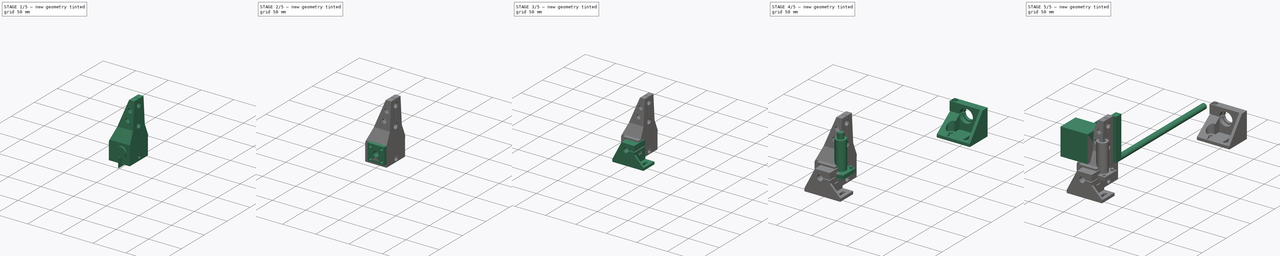
[diagram: build sequence overview — one tinted view per stage of 5, left to right]
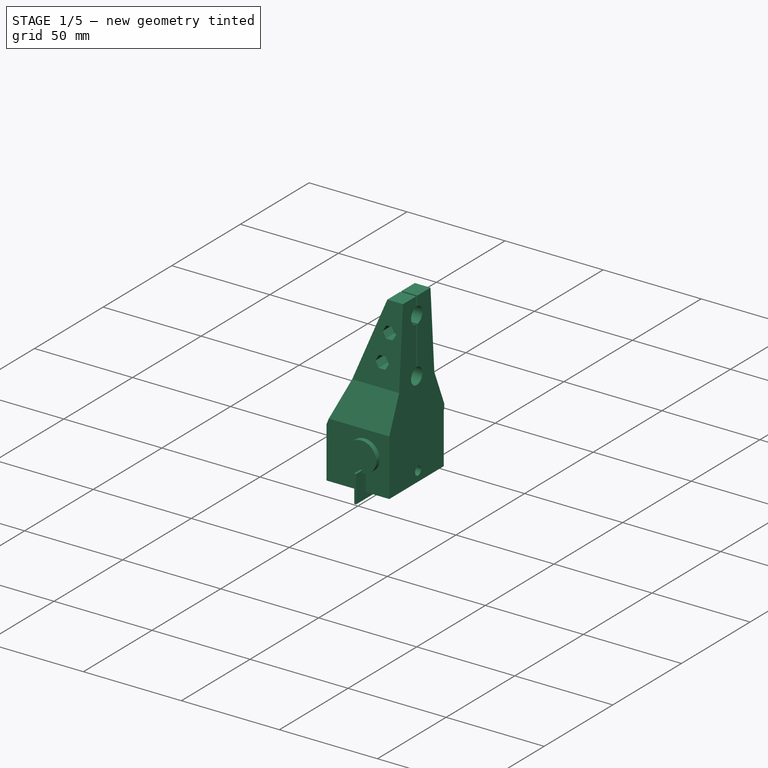
[diagram: stage 1 of 5 — iso view after this stage's code; geometry added in this stage tinted green]
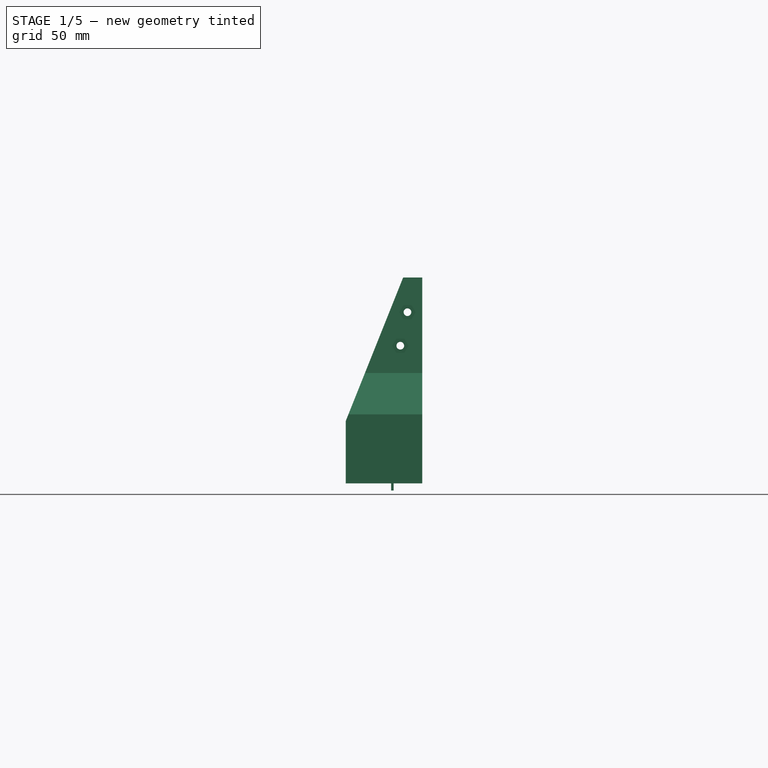
[diagram: stage 1 of 5 — front view after this stage's code; geometry added in this stage tinted green]
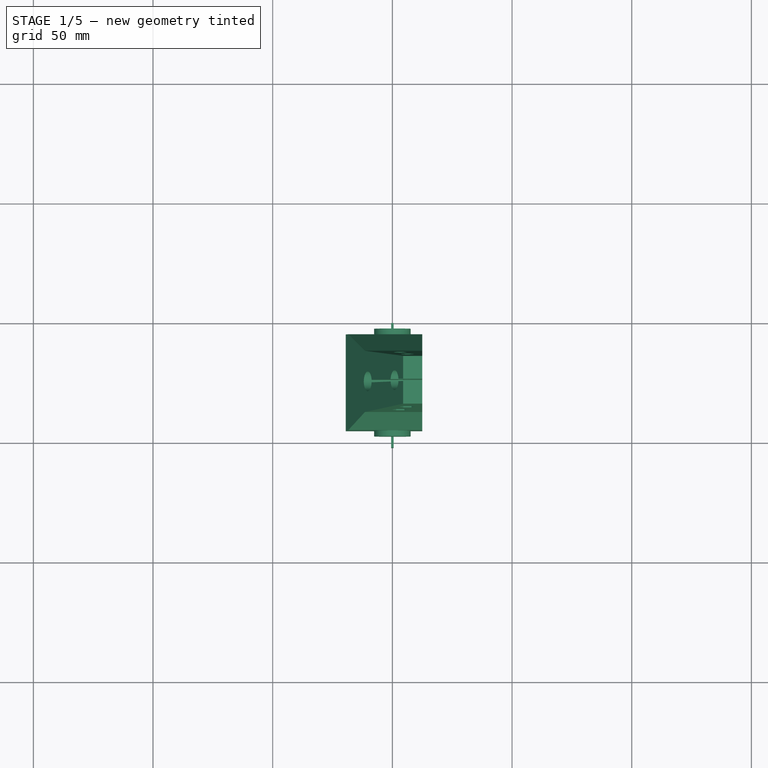
[diagram: stage 1 of 5 — top view after this stage's code; geometry added in this stage tinted green]
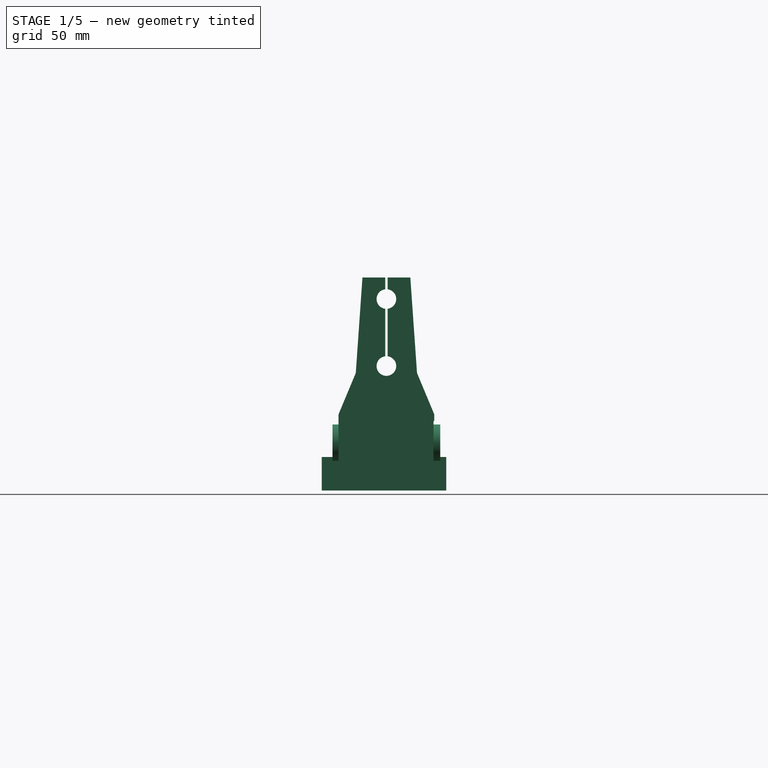
[diagram: stage 1 of 5 — right view after this stage's code; geometry added in this stage tinted green]
FCSTD DOCUMENT  (FreeCAD 0.18R4 (GitTag))
Label: Вертикальная стойка
License: All rights reserved
LicenseURL: http://en.wikipedia.org/wiki/All_rights_reserved
objects: Part::Cut×68, Part::Cylinder×63, Part::MultiFuse×24, Part::Box×21, Part::Extrusion×18, Sketcher::SketchObject×12, Part::Cone×8, Part::RegularPolygon×6, Part::FeaturePython×2
note: 222 computed .brp shape members not serialized (recipe doc carries the construction recipe); baked Part::Feature solids carry a one-line shape summary decoded from their .brp

FEATURE [Part::Box] Box001  label="Куб001"
  AttacherType = Attacher::AttachEngine3D
  Height = 26
  Length = 32
  Placement = pos=(-19.5,5,-17) rot=(0,0,1;0rad)
  Width = 39.7
FEATURE [Part::Cylinder] Cylinder076  label="Цилиндр069"
  Angle = 360
  AttacherType = Attacher::AttachEngine3D
  Height = 50
  Placement = pos=(-24,26,-8) rot=(0,1,0;1.5708rad)
  Radius = 2.2
FEATURE [Part::Cone] Cone006  label="Конус006"
  Angle = 360
  AttacherType = Attacher::AttachEngine3D
  Height = 5
  Placement = pos=(-24,26,-8) rot=(0,-1,0;1.5708rad)
  Radius1 = 2.2
  Radius2 = 4
FEATURE [Part::MultiFuse] Fusion033  label="Винт М4х50 пот"
  Placement = pos=(9,0,-4) rot=(0,0,1;0rad)
  Shapes = -> [Cone006,Cylinder076]
FEATURE [Part::Cut] Cut055
  Base = -> Box001
  Tool = -> Fusion033
FEATURE [Part::Box] Box026  label="Куб026"
  AttacherType = Attacher::AttachEngine3D
  Height = 14
  Length = 1
  Placement = pos=(-0.5,-2,-20) rot=(0,0,1;0rad)
  Width = 52
FEATURE [Part::Cylinder] Cylinder089  label="Цилиндр082"
  Angle = 360
  AttacherType = Attacher::AttachEngine3D
  Height = 45
  Placement = pos=(0,47.5,7e-15) rot=(1,0,0;1.5708rad)
  Radius = 7.6
FEATURE [Part::RegularPolygon] RegularPolygon004  label="Правильный многоугольник004"
  AttacherType = Attacher::AttachEngine3D
  Circumradius = 3.4
  Polygon = 6
FEATURE [Sketcher::SketchObject] Sketch017
  Placement = pos=(0,0,0) rot=(1,0,0;1.5708rad)
  sketch-geometry (4):
    g0: LineSegment StartX=-15 StartY=9 StartZ=0 EndX=17 EndY=9 EndZ=0
    g1: LineSegment StartX=17 StartY=9 StartZ=0 EndX=17 EndY=69 EndZ=0
    g2: LineSegment StartX=17 StartY=69 StartZ=0 EndX=9 EndY=69 EndZ=0
    g3: LineSegment StartX=9 StartY=69 StartZ=0 EndX=-15 EndY=9 EndZ=0
  constraints (12):
    c: Horizontal(g0)
    c: DistanceX(g0) = -15
    c: DistanceY(g0) = 9
    c: DistanceX(g0,g0) = 32
    c: Vertical(g1)
    c: Coincident(g1,g0)
    c: Horizontal(g2)
    c: DistanceY(g1,g1) = 60
    c: Coincident(g2,g1)
    c: DistanceX(g2,g2) = 8
    c: Coincident(g3,g2)
    c: Coincident(g3,g0)
FEATURE [Part::Box] Box029  label="Куб029"
  AttacherType = Attacher::AttachEngine3D
  Height = 26
  Length = 32
  Placement = pos=(-19.5,5,-17) rot=(0,0,1;0rad)
  Width = 39.7
FEATURE [Part::Cylinder] Cylinder090  label="Направляющая007"
  Angle = 360
  AttacherType = Attacher::AttachEngine3D
  Height = 240
  Placement = pos=(-33,25,32) rot=(0.57735,-0.57735,0.57735;4.18879rad)
  Radius = 4.1
FEATURE [Part::Extrusion] Extrude020
  Base = -> Sketch017
  Dir = (0,1,0)
  DirMode = 0
  FaceMakerClass = Part::FaceMakerBullseye
  LengthFwd = 40
  LengthRev = 0
  Placement = pos=(0,5,0) rot=(0,0,1;0rad)
  Solid = true
  Symmetric = false
FEATURE [Part::Cylinder] Cylinder091  label="Направляющая008"
  Angle = 360
  AttacherType = Attacher::AttachEngine3D
  Height = 240
  Placement = pos=(-7.9,25,60) rot=(0.57735,-0.57735,0.57735;4.18879rad)
  Radius = 4.1
FEATURE [Part::Box] Box030  label="Куб030"
  AttacherType = Attacher::AttachEngine3D
  Height = 48
  Length = 36
  Placement = pos=(-12,24.5,31) rot=(0,0,1;0rad)
  Width = 1
FEATURE [Sketcher::SketchObject] Sketch018
  Placement = pos=(0,0,0) rot=(0.57735,0.57735,0.57735;2.0944rad)
  sketch-geometry (4):
    g0: LineSegment StartX=15 StartY=69 StartZ=0 EndX=12.2079 EndY=29.0976 EndZ=0
    g1: LineSegment StartX=12.2079 StartY=29.0976 StartZ=0 EndX=4.204 EndY=9.91667 EndZ=0
    g2: LineSegment StartX=4.204 StartY=9.91667 StartZ=0 EndX=4.204 EndY=69 EndZ=0
    g3: LineSegment StartX=15 StartY=69 StartZ=0 EndX=4.204 EndY=69 EndZ=0
  constraints (12):
    c: DistanceX(g0) = 15
    c: DistanceY(g0) = 69
    c: Distance(g0) = 40
    c: Coincident(g1,g0)
    c: Vertical(g2)
    c: Coincident(g2,g1)
    c: Horizontal(g3)
    c: Coincident(g3,g0)
    c: Coincident(g2,g3)
    c: DistanceX(g1) = 4.204
    c: DistanceY(g1) = 9.91667
    c: Angle(g1,g2) = 0.395317
FEATURE [Part::Extrusion] Extrude022
  Base = -> Sketch018
  Dir = (1,0,0)
  DirMode = 0
  FaceMakerClass = Part::FaceMakerBullseye
  LengthFwd = 50
  LengthRev = 0
  Placement = pos=(28,50,0) rot=(0,0,1;3.14159rad)
  Solid = true
  Symmetric = false
FEATURE [Sketcher::SketchObject] Sketch019
  Placement = pos=(0,0,0) rot=(0.57735,0.57735,0.57735;2.0944rad)
  sketch-geometry (4):
    g0: LineSegment StartX=15 StartY=69 StartZ=0 EndX=12.2079 EndY=29.0976 EndZ=0
    g1: LineSegment StartX=12.2079 StartY=29.0976 StartZ=0 EndX=4.204 EndY=9.91667 EndZ=0
    g2: LineSegment StartX=4.204 StartY=9.91667 StartZ=0 EndX=4.204 EndY=69 EndZ=0
    g3: LineSegment StartX=15 StartY=69 StartZ=0 EndX=4.204 EndY=69 EndZ=0
  constraints (12):
    c: DistanceX(g0) = 15
    c: DistanceY(g0) = 69
    c: Distance(g0) = 40
    c: Coincident(g1,g0)
    c: Vertical(g2)
    c: Coincident(g2,g1)
    c: Horizontal(g3)
    c: Coincident(g3,g0)
    c: Coincident(g2,g3)
    c: DistanceX(g1) = 4.204
    c: DistanceY(g1) = 9.91667
    c: Angle(g1,g2) = 0.395317
FEATURE [Part::Extrusion] Extrude021
  Base = -> Sketch019
  Dir = (1,0,0)
  DirMode = 0
  FaceMakerClass = Part::FaceMakerBullseye
  LengthFwd = 50
  LengthRev = 0
  Placement = pos=(-19,0,0) rot=(0,0,1;0rad)
  Solid = true
  Symmetric = false
FEATURE [Part::RegularPolygon] RegularPolygon005  label="Правильный многоугольник005"
  AttacherType = Attacher::AttachEngine3D
  Circumradius = 3.4
  Polygon = 6
FEATURE [Part::Cut] Cut076
  Base = -> Extrude020
  Tool = -> Extrude021
FEATURE [Part::Cut] Cut070
  Base = -> Cut076
  Tool = -> Extrude022
FEATURE [Part::Cut] Cut077
  Base = -> Cut070
  Tool = -> Cylinder090
FEATURE [Part::Cut] Cut069
  Base = -> Cut077
  Tool = -> Cylinder091
FEATURE [Part::Cut] Cut075
  Base = -> Cut069
  Tool = -> Box030
FEATURE [Part::Cylinder] Cylinder092  label="Цилиндр083"
  Angle = 360
  AttacherType = Attacher::AttachEngine3D
  Height = 15
  Radius = 1.6
FEATURE [Part::Cylinder] Cylinder093  label="Цилиндр084"
  Angle = 360
  AttacherType = Attacher::AttachEngine3D
  Height = 15
  Radius = 1.6
FEATURE [Part::Extrusion] Extrude023
  Base = -> RegularPolygon005
  Dir = (0,0,1)
  DirMode = 0
  FaceMakerClass = Part::FaceMakerBullseye
  LengthFwd = 15
  LengthRev = 0
  Placement = pos=(7.8,6.8,40.5) rot=(-1,0,0;1.5708rad)
  Solid = true
  Symmetric = false
FEATURE [Part::Extrusion] Extrude024
  Base = -> RegularPolygon004
  Dir = (0,0,1)
  DirMode = 0
  FaceMakerClass = Part::FaceMakerBullseye
  LengthFwd = 15
  LengthRev = 0
  Placement = pos=(10.8,5.2,54.5) rot=(-1,0,0;1.5708rad)
  Solid = true
  Symmetric = false
FEATURE [Part::Cut] Cut071
  Base = -> Cut075
  Tool = -> Extrude024
FEATURE [Part::Cut] Cut072
  Base = -> Cut071
  Tool = -> Extrude023
FEATURE [Part::Cylinder] Cylinder094  label="Цилиндр085"
  Angle = 360
  AttacherType = Attacher::AttachEngine3D
  Height = 50
  Placement = pos=(-24,26,-8) rot=(0,1,0;1.5708rad)
  Radius = 2.2
FEATURE [Part::Box] Box031  label="Куб031"
  AttacherType = Attacher::AttachEngine3D
  Height = 14
  Length = 1
  Placement = pos=(-0.5,-2,-20) rot=(0,0,1;0rad)
  Width = 52
FEATURE [Part::RegularPolygon] RegularPolygon006  label="Правильный многоугольник006"
  AttacherType = Attacher::AttachEngine3D
  Circumradius = 4.3
  Polygon = 6
FEATURE [Part::Extrusion] Extrude025  label="Гайка М005"
  Base = -> RegularPolygon006
  Dir = (0,0,1)
  DirMode = 0
  FaceMakerClass = Part::FaceMakerBullseye
  LengthFwd = 8
  LengthRev = 0
  Placement = pos=(5,26,-12) rot=(0,1,0;1.5708rad)
  Solid = true
  Symmetric = false
FEATURE [Part::Cylinder] Cylinder095  label="Цилиндр086"
  Angle = 360
  AttacherType = Attacher::AttachEngine3D
  Height = 45
  Placement = pos=(0,47.5,7e-15) rot=(1,0,0;1.5708rad)
  Radius = 7.6
FEATURE [Part::Cone] Cone007  label="Конус007"
  Angle = 360
  AttacherType = Attacher::AttachEngine3D
  Height = 3.5
  Placement = pos=(0,0,15) rot=(0,0,1;0rad)
  Radius1 = 1.6
  Radius2 = 3
FEATURE [Part::MultiFuse] Fusion037  label="Винт М3 потай006"
  Placement = pos=(7.8,19,40.5) rot=(-1,0,0;1.5708rad)
  Shapes = -> [Cone007,Cylinder093]
FEATURE [Part::Cut] Cut073
  Base = -> Cut072
  Tool = -> Fusion037
FEATURE [Part::Cone] Cone008  label="Конус008"
  Angle = 360
  AttacherType = Attacher::AttachEngine3D
  Height = 3.5
  Placement = pos=(0,0,15) rot=(0,0,1;0rad)
  Radius1 = 1.6
  Radius2 = 3
FEATURE [Part::MultiFuse] Fusion038  label="Винт М3 потай007"
  Placement = pos=(10.8,18,54.5) rot=(-1,0,0;1.5708rad)
  Shapes = -> [Cone008,Cylinder092]
FEATURE [Part::Cut] Cut074
  Base = -> Cut073
  Placement = pos=(-4.5,0,0) rot=(0,0,1;0rad)
  Tool = -> Fusion038
FEATURE [Part::Cone] Cone009  label="Конус009"
  Angle = 360
  AttacherType = Attacher::AttachEngine3D
  Height = 5
  Placement = pos=(-24,26,-8) rot=(0,-1,0;1.5708rad)
  Radius1 = 2.2
  Radius2 = 4
FEATURE [Part::MultiFuse] Fusion039  label="Винт М4х50 пот001"
  Placement = pos=(9,0,-4) rot=(0,0,1;0rad)
  Shapes = -> [Cone009,Cylinder094]
FEATURE [Part::Cut] Cut079
  Base = -> Box029
  Tool = -> Fusion039
FEATURE [Part::Cut] Cut078
  Base = -> Cut079
  Tool = -> Extrude025
FEATURE [Part::Cut] Cut080
  Base = -> Cut078
  Tool = -> Box031
FEATURE [Part::Cut] Cut081
  Base = -> Cut080
  Tool = -> Cylinder095
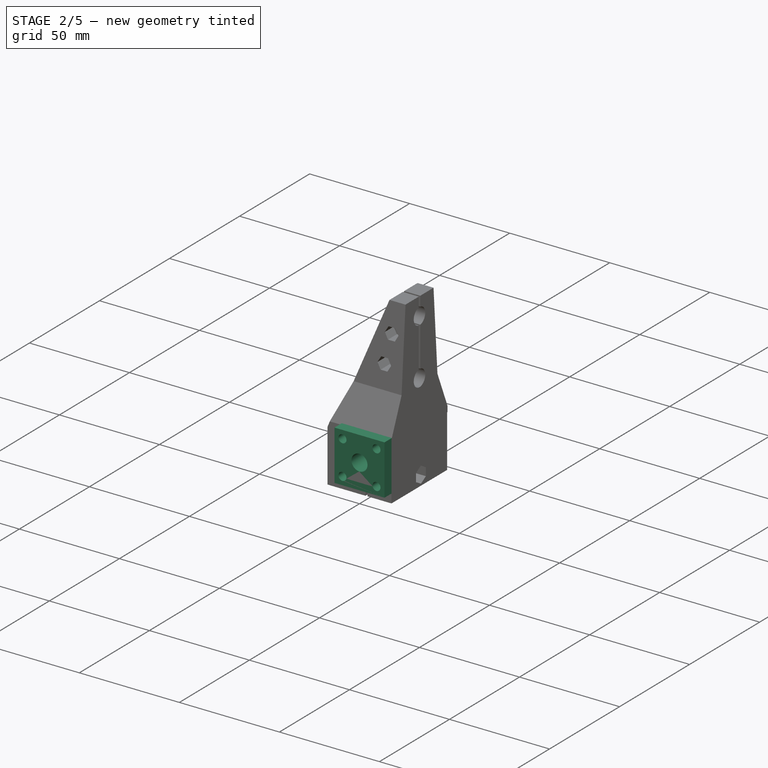
[diagram: stage 2 of 5 — iso view after this stage's code; geometry added in this stage tinted green]
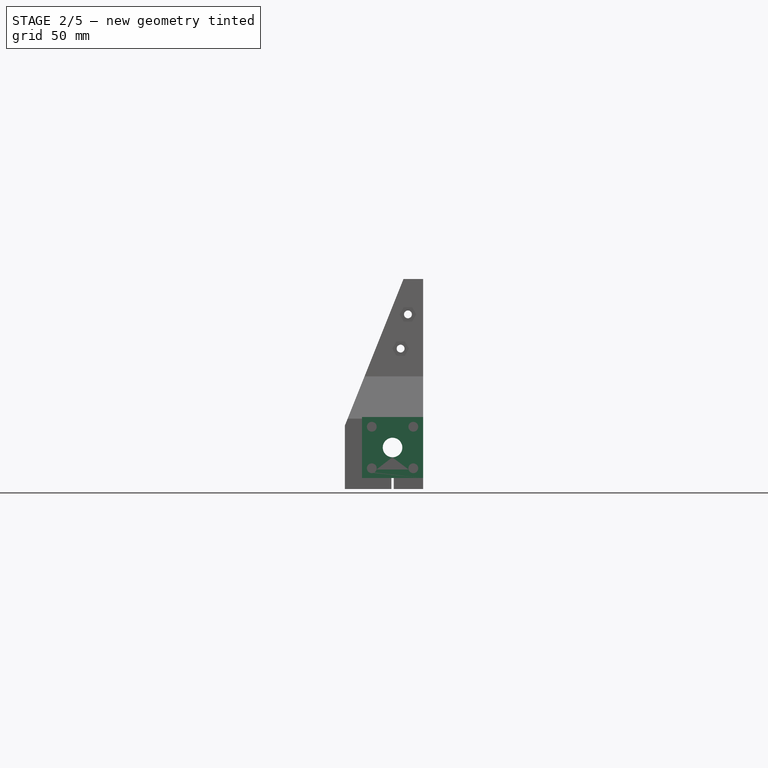
[diagram: stage 2 of 5 — front view after this stage's code; geometry added in this stage tinted green]
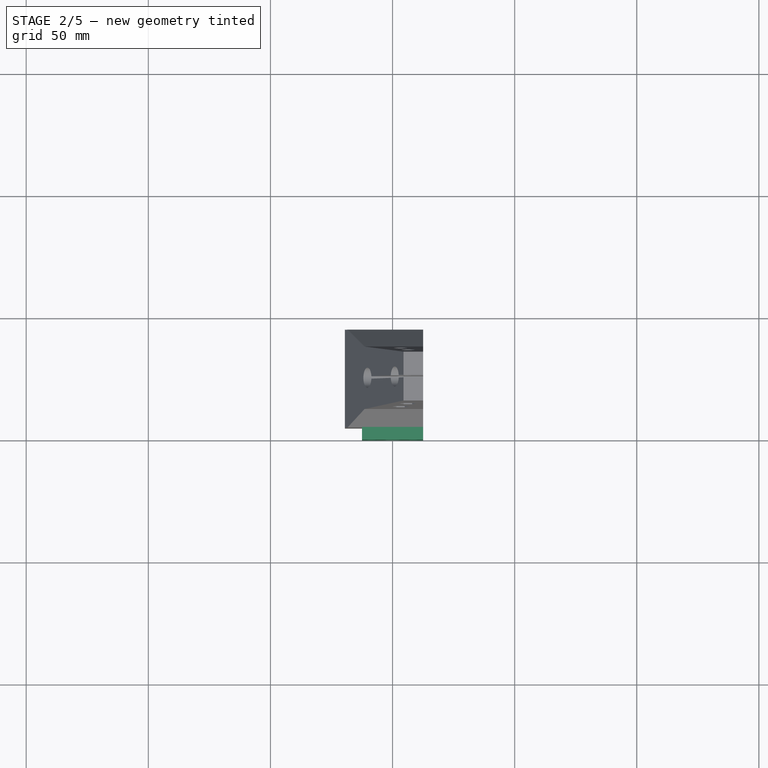
[diagram: stage 2 of 5 — top view after this stage's code; geometry added in this stage tinted green]
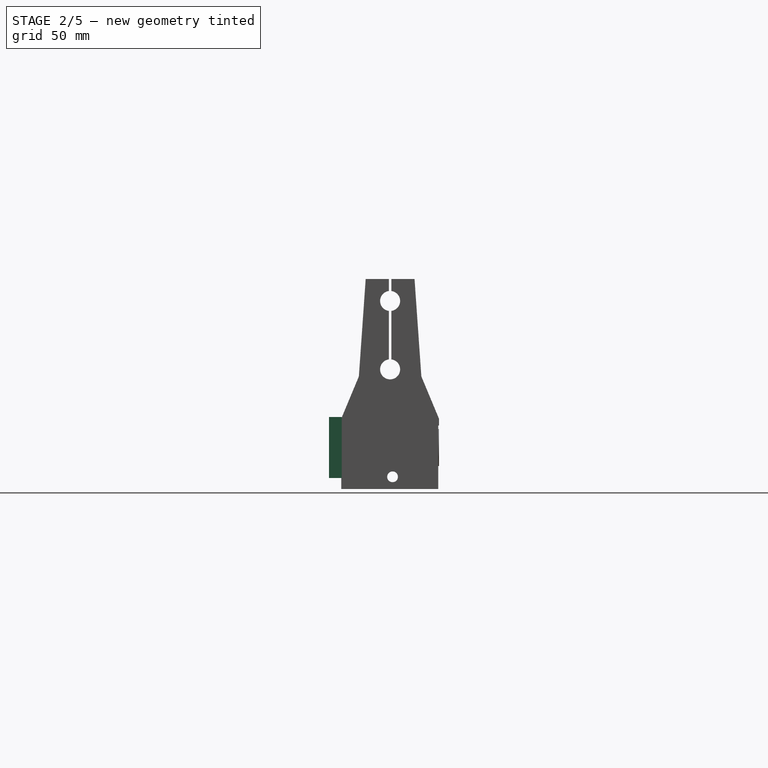
[diagram: stage 2 of 5 — right view after this stage's code; geometry added in this stage tinted green]
FEATURE [Part::Cylinder] Cylinder009  label="Направляющая002"
  Angle = 360
  AttacherType = Attacher::AttachEngine3D
  Height = 240
  Placement = pos=(-33,25,32) rot=(0.57735,-0.57735,0.57735;4.18879rad)
  Radius = 4.1
FEATURE [Part::Cylinder] Cylinder010  label="Направляющая003"
  Angle = 360
  AttacherType = Attacher::AttachEngine3D
  Height = 240
  Placement = pos=(-7.9,25,60) rot=(0.57735,-0.57735,0.57735;4.18879rad)
  Radius = 4.1
FEATURE [Sketcher::SketchObject] Sketch
  Placement = pos=(0,0,0) rot=(1,0,0;1.5708rad)
  sketch-geometry (4):
    g0: LineSegment StartX=-15 StartY=9 StartZ=0 EndX=17 EndY=9 EndZ=0
    g1: LineSegment StartX=17 StartY=9 StartZ=0 EndX=17 EndY=69 EndZ=0
    g2: LineSegment StartX=17 StartY=69 StartZ=0 EndX=9 EndY=69 EndZ=0
    g3: LineSegment StartX=9 StartY=69 StartZ=0 EndX=-15 EndY=9 EndZ=0
  constraints (12):
    c: Horizontal(g0)
    c: DistanceX(g0) = -15
    c: DistanceY(g0) = 9
    c: DistanceX(g0,g0) = 32
    c: Vertical(g1)
    c: Coincident(g1,g0)
    c: Horizontal(g2)
    c: DistanceY(g1,g1) = 60
    c: Coincident(g2,g1)
    c: DistanceX(g2,g2) = 8
    c: Coincident(g3,g2)
    c: Coincident(g3,g0)
FEATURE [Part::Extrusion] Extrude
  Base = -> Sketch
  Dir = (0,1,0)
  DirMode = 0
  FaceMakerClass = Part::FaceMakerBullseye
  LengthFwd = 40
  LengthRev = 0
  Placement = pos=(0,5,0) rot=(0,0,1;0rad)
  Solid = true
  Symmetric = false
FEATURE [Sketcher::SketchObject] Sketch001
  Placement = pos=(0,0,0) rot=(0.57735,0.57735,0.57735;2.0944rad)
  sketch-geometry (4):
    g0: LineSegment StartX=15 StartY=69 StartZ=0 EndX=12.2079 EndY=29.0976 EndZ=0
    g1: LineSegment StartX=12.2079 StartY=29.0976 StartZ=0 EndX=4.204 EndY=9.91667 EndZ=0
    g2: LineSegment StartX=4.204 StartY=9.91667 StartZ=0 EndX=4.204 EndY=69 EndZ=0
    g3: LineSegment StartX=15 StartY=69 StartZ=0 EndX=4.204 EndY=69 EndZ=0
  constraints (12):
    c: DistanceX(g0) = 15
    c: DistanceY(g0) = 69
    c: Distance(g0) = 40
    c: Coincident(g1,g0)
    c: Vertical(g2)
    c: Coincident(g2,g1)
    c: Horizontal(g3)
    c: Coincident(g3,g0)
    c: Coincident(g2,g3)
    c: DistanceX(g1) = 4.204
    c: DistanceY(g1) = 9.91667
    c: Angle(g1,g2) = 0.395317
FEATURE [Part::Extrusion] Extrude001
  Base = -> Sketch001
  Dir = (1,0,0)
  DirMode = 0
  FaceMakerClass = Part::FaceMakerBullseye
  LengthFwd = 50
  LengthRev = 0
  Placement = pos=(-19,0,0) rot=(0,0,1;0rad)
  Solid = true
  Symmetric = false
FEATURE [Sketcher::SketchObject] Sketch002
  Placement = pos=(0,0,0) rot=(0.57735,0.57735,0.57735;2.0944rad)
  sketch-geometry (4):
    g0: LineSegment StartX=15 StartY=69 StartZ=0 EndX=12.2079 EndY=29.0976 EndZ=0
    g1: LineSegment StartX=12.2079 StartY=29.0976 StartZ=0 EndX=4.204 EndY=9.91667 EndZ=0
    g2: LineSegment StartX=4.204 StartY=9.91667 StartZ=0 EndX=4.204 EndY=69 EndZ=0
    g3: LineSegment StartX=15 StartY=69 StartZ=0 EndX=4.204 EndY=69 EndZ=0
  constraints (12):
    c: DistanceX(g0) = 15
    c: DistanceY(g0) = 69
    c: Distance(g0) = 40
    c: Coincident(g1,g0)
    c: Vertical(g2)
    c: Coincident(g2,g1)
    c: Horizontal(g3)
    c: Coincident(g3,g0)
    c: Coincident(g2,g3)
    c: DistanceX(g1) = 4.204
    c: DistanceY(g1) = 9.91667
    c: Angle(g1,g2) = 0.395317
FEATURE [Part::Extrusion] Extrude002
  Base = -> Sketch002
  Dir = (1,0,0)
  DirMode = 0
  FaceMakerClass = Part::FaceMakerBullseye
  LengthFwd = 50
  LengthRev = 0
  Placement = pos=(28,50,0) rot=(0,0,1;3.14159rad)
  Solid = true
  Symmetric = false
FEATURE [Part::Cut] Cut035
  Base = -> Extrude
  Tool = -> Extrude001
FEATURE [Part::Cut] Cut036
  Base = -> Cut035
  Tool = -> Extrude002
FEATURE [Part::Box] Box007  label="Куб007"
  AttacherType = Attacher::AttachEngine3D
  Height = 48
  Length = 36
  Placement = pos=(-12,24.5,31) rot=(0,0,1;0rad)
  Width = 1
FEATURE [Part::Cut] Cut037
  Base = -> Cut036
  Tool = -> Cylinder009
FEATURE [Part::Cut] Cut038
  Base = -> Cut037
  Tool = -> Cylinder010
FEATURE [Part::Cut] Cut039
  Base = -> Cut038
  Tool = -> Box007
FEATURE [Part::Cone] Cone004  label="Конус004"
  Angle = 360
  AttacherType = Attacher::AttachEngine3D
  Height = 3.5
  Placement = pos=(0,0,15) rot=(0,0,1;0rad)
  Radius1 = 1.6
  Radius2 = 3
FEATURE [Part::Cylinder] Cylinder068  label="Цилиндр062"
  Angle = 360
  AttacherType = Attacher::AttachEngine3D
  Height = 15
  Radius = 1.6
FEATURE [Part::MultiFuse] Fusion029  label="Винт М3 потай004"
  Placement = pos=(7.8,19,40.5) rot=(-1,0,0;1.5708rad)
  Shapes = -> [Cone004,Cylinder068]
FEATURE [Part::Cylinder] Cylinder069  label="Цилиндр063"
  Angle = 360
  AttacherType = Attacher::AttachEngine3D
  Height = 15
  Radius = 1.6
FEATURE [Part::Cone] Cone005  label="Конус005"
  Angle = 360
  AttacherType = Attacher::AttachEngine3D
  Height = 3.5
  Placement = pos=(0,0,15) rot=(0,0,1;0rad)
  Radius1 = 1.6
  Radius2 = 3
FEATURE [Part::MultiFuse] Fusion030  label="Винт М3 потай005"
  Placement = pos=(10.8,18,54.5) rot=(-1,0,0;1.5708rad)
  Shapes = -> [Cone005,Cylinder069]
FEATURE [Part::RegularPolygon] RegularPolygon  label="Правильный многоугольник"
  AttacherType = Attacher::AttachEngine3D
  Circumradius = 3.4
  Polygon = 6
FEATURE [Part::Extrusion] Extrude003
  Base = -> RegularPolygon
  Dir = (0,0,1)
  DirMode = 0
  FaceMakerClass = Part::FaceMakerBullseye
  LengthFwd = 15
  LengthRev = 0
  Placement = pos=(7.8,6.8,40.5) rot=(-1,0,0;1.5708rad)
  Solid = true
  Symmetric = false
FEATURE [Part::RegularPolygon] RegularPolygon001  label="Правильный многоугольник001"
  AttacherType = Attacher::AttachEngine3D
  Circumradius = 3.4
  Polygon = 6
FEATURE [Part::Extrusion] Extrude004
  Base = -> RegularPolygon001
  Dir = (0,0,1)
  DirMode = 0
  FaceMakerClass = Part::FaceMakerBullseye
  LengthFwd = 15
  LengthRev = 0
  Placement = pos=(10.8,5.2,54.5) rot=(-1,0,0;1.5708rad)
  Solid = true
  Symmetric = false
FEATURE [Part::Cut] Cut040
  Base = -> Cut039
  Tool = -> Extrude004
FEATURE [Part::Cut] Cut041
  Base = -> Cut040
  Tool = -> Extrude003
FEATURE [Part::Cut] Cut042
  Base = -> Cut041
  Tool = -> Fusion029
FEATURE [Part::Cut] Cut043
  Base = -> Cut042
  Placement = pos=(-4.5,0,0) rot=(0,0,1;0rad)
  Tool = -> Fusion030
FEATURE [Part::RegularPolygon] RegularPolygon003  label="Правильный многоугольник003"
  AttacherType = Attacher::AttachEngine3D
  Circumradius = 4.1
  Polygon = 6
FEATURE [Part::Extrusion] Extrude019  label="Гайка М4"
  Base = -> RegularPolygon003
  Dir = (0,0,1)
  DirMode = 0
  FaceMakerClass = Part::FaceMakerBullseye
  LengthFwd = 8
  LengthRev = 0
  Placement = pos=(5,26,-12) rot=(0,1,0;1.5708rad)
  Solid = true
  Symmetric = false
FEATURE [Part::Cut] Cut056
  Base = -> Cut055
  Tool = -> Extrude019
FEATURE [Part::Cut] Cut057
  Base = -> Cut056
  Tool = -> Box026
FEATURE [Part::Box] Box028  label="Куб028"
  AttacherType = Attacher::AttachEngine3D
  Height = 5.2
  Length = 25
  Width = 25
FEATURE [Part::Cylinder] Cylinder083  label="Цилиндр076"
  Angle = 360
  AttacherType = Attacher::AttachEngine3D
  Height = 60
  Placement = pos=(12.5,12.5,-7) rot=(0,0,1;0rad)
  Radius = 4
FEATURE [Part::Cylinder] Cylinder084  label="Цилиндр077"
  Angle = 360
  AttacherType = Attacher::AttachEngine3D
  Height = 10
  Placement = pos=(4,4,-2) rot=(0,0,1;0rad)
  Radius = 2
FEATURE [Part::Cylinder] Cylinder085  label="Цилиндр078"
  Angle = 360
  AttacherType = Attacher::AttachEngine3D
  Height = 10
  Placement = pos=(4,21,-2) rot=(0,0,1;0rad)
  Radius = 2
FEATURE [Part::Cylinder] Cylinder086  label="Цилиндр079"
  Angle = 360
  AttacherType = Attacher::AttachEngine3D
  Height = 10
  Placement = pos=(21,21,-2) rot=(0,0,1;0rad)
  Radius = 2
FEATURE [Part::Cylinder] Cylinder087  label="Цилиндр080"
  Angle = 360
  AttacherType = Attacher::AttachEngine3D
  Height = 10
  Placement = pos=(21,4,-2) rot=(0,0,1;0rad)
  Radius = 2
FEATURE [Part::Cylinder] Cylinder088  label="Цилиндр081"
  Angle = 360
  AttacherType = Attacher::AttachEngine3D
  Height = 40
  Placement = pos=(12.5,12.5,5) rot=(0,0,1;0rad)
  Radius = 7.6
FEATURE [Part::MultiFuse] Fusion035
  Shapes = -> [Box028,Cylinder088]
FEATURE [Part::Cut] Cut065
  Base = -> Fusion035
  Tool = -> Cylinder083
FEATURE [Part::Cut] Cut066
  Base = -> Cut065
  Tool = -> Cylinder084
FEATURE [Part::Cut] Cut063
  Base = -> Cut066
  Tool = -> Cylinder085
FEATURE [Part::Cut] Cut064
  Base = -> Cut063
  Tool = -> Cylinder087
FEATURE [Part::Cut] Cut067  label="Линейный подшипник004"
  Base = -> Cut064
  Placement = pos=(-12.5,3e-15,12.5) rot=(-1,0,0;1.5708rad)
  Tool = -> Cylinder086
FEATURE [Part::Cut] Cut068
  Base = -> Cut057
  Tool = -> Cylinder089
FEATURE [Part::MultiFuse] Fusion036
  Shapes = -> [Cut068,Cut043]
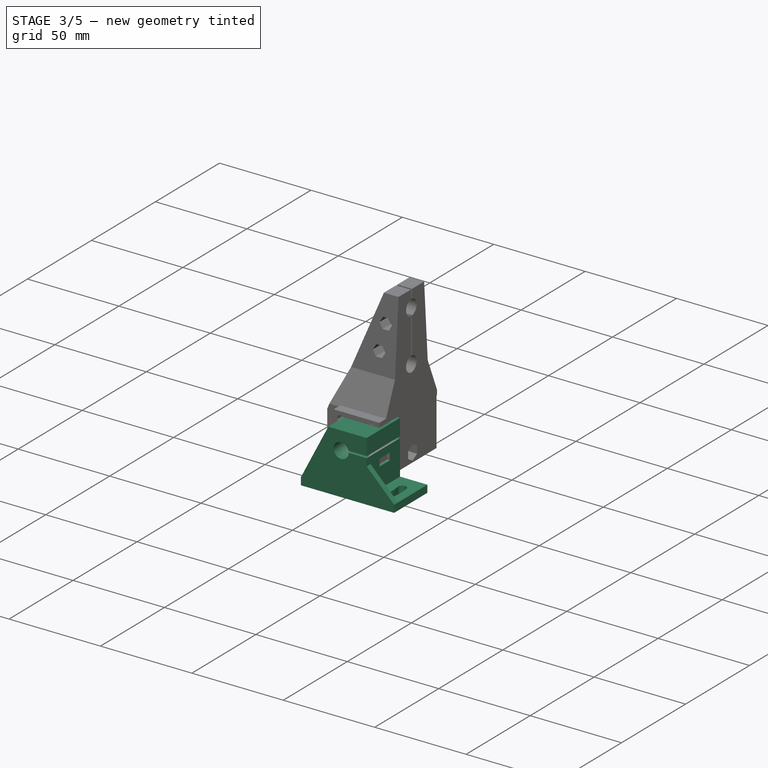
[diagram: stage 3 of 5 — iso view after this stage's code; geometry added in this stage tinted green]
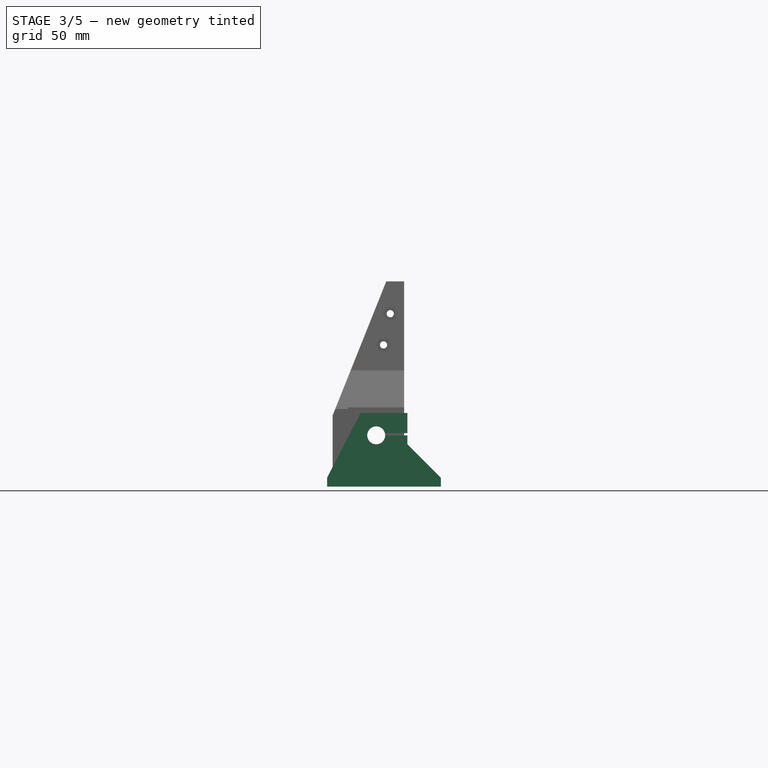
[diagram: stage 3 of 5 — front view after this stage's code; geometry added in this stage tinted green]
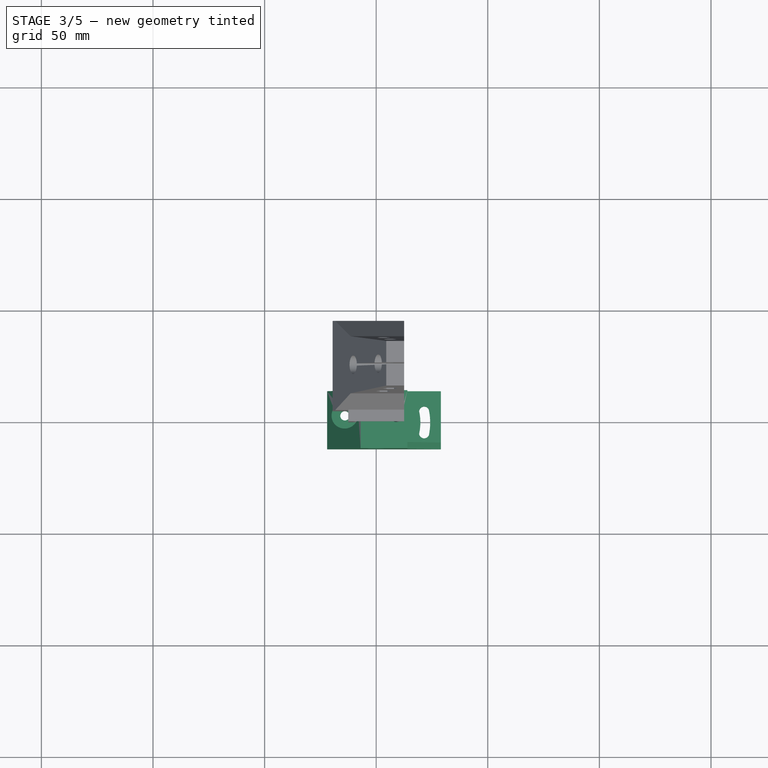
[diagram: stage 3 of 5 — top view after this stage's code; geometry added in this stage tinted green]
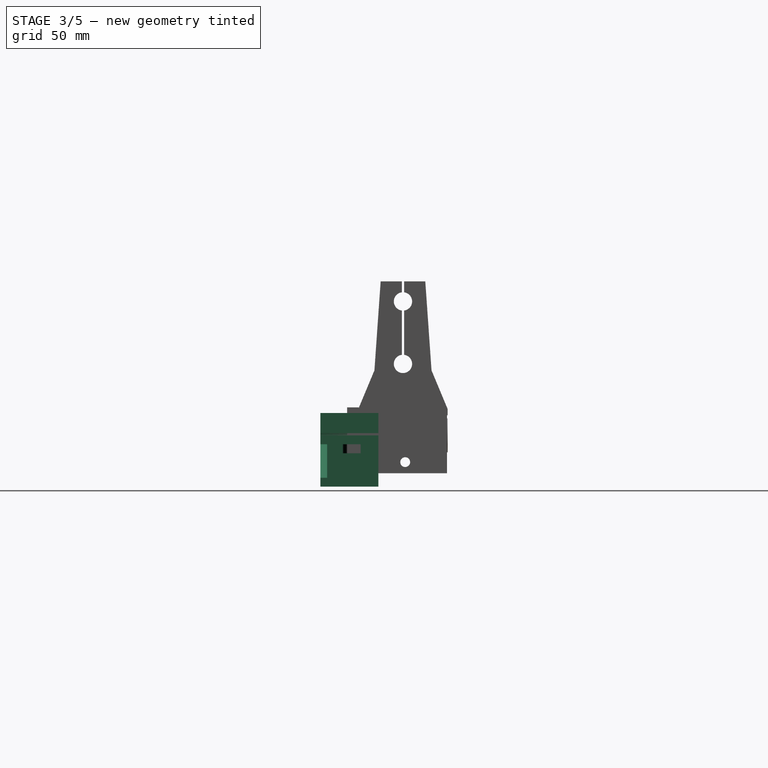
[diagram: stage 3 of 5 — right view after this stage's code; geometry added in this stage tinted green]
FEATURE [Part::Cylinder] Cylinder044  label="Цилиндр041"
  Angle = 360
  AttacherType = Attacher::AttachEngine3D
  Height = 4
  Placement = pos=(9,11,-8) rot=(0,0,1;0rad)
  Radius = 4
FEATURE [Part::Box] Box014  label="Куб014"
  AttacherType = Attacher::AttachEngine3D
  Height = 4
  Length = 13
  Placement = pos=(9,7,-8) rot=(0,0,1;0rad)
  Width = 8
FEATURE [Part::MultiFuse] Fusion015
  Placement = pos=(13,42,21) rot=(0,0,1;3.14159rad)
  Shapes = -> [Box014,Cylinder044]
FEATURE [Part::Box] Box022  label="Куб022"
  AttacherType = Attacher::AttachEngine3D
  Height = 33
  Length = 21
  Placement = pos=(-7,-3,-23) rot=(0,0,1;0rad)
  Width = 26
FEATURE [Part::Box] Box023  label="Куб023"
  AttacherType = Attacher::AttachEngine3D
  Height = 4
  Length = 51
  Placement = pos=(-22,0,-23) rot=(0,0,1;0rad)
  Width = 26
FEATURE [Part::Cylinder] Cylinder071  label="Цилиндр065"
  Angle = 360
  AttacherType = Attacher::AttachEngine3D
  Height = 10
  Radius = 2.1
FEATURE [Part::Cylinder] Cylinder072  label="Цилиндр066"
  Angle = 360
  AttacherType = Attacher::AttachEngine3D
  Height = 30
  Placement = pos=(0,0,10) rot=(0,0,1;0rad)
  Radius = 6
FEATURE [Part::Box] Box024  label="Куб024"
  AttacherType = Attacher::AttachEngine3D
  Height = 1
  Length = 12
  Placement = pos=(3,-6,0) rot=(0,0,1;0rad)
  Width = 35
FEATURE [Part::Cylinder] Cylinder073  label="Направляющая006"
  Angle = 360
  AttacherType = Attacher::AttachEngine3D
  Height = 240
  Placement = pos=(0,-7,-2e-15) rot=(-1,0,0;1.5708rad)
  Radius = 4.1
FEATURE [Part::Cylinder] Cylinder074  label="Цилиндр067"
  Angle = 360
  AttacherType = Attacher::AttachEngine3D
  Height = 15
  Radius = 1.6
FEATURE [Part::Cylinder] Cylinder075  label="Цилиндр068"
  Angle = 360
  AttacherType = Attacher::AttachEngine3D
  Height = 4
  Placement = pos=(9,11,-8) rot=(0,0,1;0rad)
  Radius = 4
FEATURE [Part::Box] Box025  label="Куб025"
  AttacherType = Attacher::AttachEngine3D
  Height = 4
  Length = 13
  Placement = pos=(9,7,-8) rot=(0,0,1;0rad)
  Width = 8
FEATURE [Part::Cone] Cone  label="Конус"
  Angle = 360
  AttacherType = Attacher::AttachEngine3D
  Height = 2.5
  Placement = pos=(0,0,15) rot=(0,0,1;0rad)
  Radius1 = 1.6
  Radius2 = 2.5
FEATURE [Sketcher::SketchObject] Sketch016
  Placement = pos=(0,0,0) rot=(1,0,0;1.5708rad)
  sketch-geometry (3):
    g0: LineSegment StartX=-22 StartY=-19 StartZ=0 EndX=-7 EndY=-19 EndZ=0
    g1: LineSegment StartX=-7 StartY=-19 StartZ=0 EndX=-7 EndY=10 EndZ=0
    g2: LineSegment StartX=-7 StartY=10 StartZ=0 EndX=-22 EndY=-19 EndZ=0
  constraints (9):
    c: Horizontal(g0)
    c: Vertical(g1)
    c: DistanceX(g0) = -7
    c: DistanceY(g0) = -19
    c: Coincident(g0,g1)
    c: Coincident(g2,g0)
    c: DistanceY(g1,g1) = 29
    c: Coincident(g2,g1)
    c: DistanceX(g0,g0) = 15
FEATURE [Part::Extrusion] Extrude017
  Base = -> Sketch016
  Dir = (0,1,0)
  DirMode = 0
  FaceMakerClass = Part::FaceMakerBullseye
  LengthFwd = 26
  LengthRev = 0
  Placement = pos=(0,-3,0) rot=(0,0,1;0rad)
  Solid = true
  Symmetric = false
FEATURE [Sketcher::SketchObject] Sketch003
  sketch-geometry (4):
    g0: ArcOfCircle CenterX=9 CenterY=15 CenterZ=0 NormalX=0 NormalY=0 NormalZ=1 AngleXU=0 Radius=27.2 StartAngle=6.09831 EndAngle=6.46806
    g1: ArcOfCircle CenterX=9 CenterY=15 CenterZ=0 NormalX=0 NormalY=0 NormalZ=1 AngleXU=0 Radius=22.8 StartAngle=6.06209 EndAngle=6.50428
    g2: ArcOfCircle CenterX=33.4907 CenterY=10.1383 CenterZ=0 NormalX=0 NormalY=0 NormalZ=1 AngleXU=0 Radius=2.25 StartAngle=3.20309 EndAngle=6.22168
    g3: ArcOfCircle CenterX=33.4907 CenterY=19.8617 CenterZ=0 NormalX=0 NormalY=0 NormalZ=1 AngleXU=0 Radius=2.25 StartAngle=0.0615005 EndAngle=3.08009
  constraints (15):
    c: DistanceX(g0) = 9
    c: DistanceY(g0) = 15
    c: Coincident(g1,g0)
    c: Radius(g1) = 22.8
    c: Radius(g0) = 27.2
    c: DistanceY(g-1,g1) = 10
    c: DistanceY(g-1,g0) = 10
    c: DistanceY(g1,g1) = 10
    c: DistanceY(g0,g0) = 10
    c: Coincident(g2,g1)
    c: Coincident(g2,g0)
    c: Radius(g2) = 2.25
    c: Coincident(g3,g1)
    c: Coincident(g0,g3)
    c: Radius(g3) = 2.25
FEATURE [Part::Extrusion] Extrude018
  Base = -> Sketch003
  Dir = (0,0,-1)
  DirMode = 0
  FaceMakerClass = Part::FaceMakerBullseye
  LengthFwd = 10
  LengthRev = 0
  Placement = pos=(-12,-3,-17) rot=(0,0,1;0rad)
  Solid = true
  Symmetric = false
FEATURE [Sketcher::SketchObject] Sketch004
  Placement = pos=(0,0,0) rot=(1,0,0;1.5708rad)
  sketch-geometry (3):
    g0: LineSegment StartX=-22 StartY=-19 StartZ=0 EndX=-7 EndY=-19 EndZ=0
    g1: LineSegment StartX=-7 StartY=-19 StartZ=0 EndX=-7 EndY=-4 EndZ=0
    g2: LineSegment StartX=-7 StartY=-4 StartZ=0 EndX=-22 EndY=-19 EndZ=0
  constraints (9):
    c: Horizontal(g0)
    c: Vertical(g1)
    c: DistanceX(g0) = -7
    c: DistanceY(g0) = -19
    c: Coincident(g0,g1)
    c: Coincident(g2,g0)
    c: DistanceY(g1,g1) = 15
    c: Coincident(g2,g1)
    c: DistanceX(g0,g0) = 15
FEATURE [Part::Extrusion] Extrude005
  Base = -> Sketch004
  Dir = (0,1,0)
  DirMode = 0
  FaceMakerClass = Part::FaceMakerBullseye
  LengthFwd = 3
  LengthRev = 0
  Placement = pos=(7,4e-15,0) rot=(0,0,1;3.14159rad)
  Solid = true
  Symmetric = false
FEATURE [Part::Cut] Cut018
  Base = -> Box022
  Tool = -> Box024
FEATURE [Part::Cut] Cut019
  Base = -> Cut018
  Tool = -> Cylinder073
FEATURE [Part::MultiFuse] Fusion009  label="Винт М3 потай"
  Placement = pos=(9,11,-7) rot=(0,0,1;0rad)
  Shapes = -> [Cone,Cylinder074]
FEATURE [Part::MultiFuse] Fusion010
  Shapes = -> [Box025,Cylinder075]
FEATURE [Part::Cut] Cut017
  Base = -> Box023
  Placement = pos=(0,-3,0) rot=(0,0,1;0rad)
  Tool = -> Extrude018
FEATURE [Part::MultiFuse] Fusion031
  Shapes = -> [Cut019,Cut017,Extrude017]
FEATURE [Part::MultiFuse] Fusion011
  Shapes = -> [Fusion031,Extrude005]
FEATURE [Part::Cut] Cut020
  Base = -> Fusion011
  Tool = -> Fusion010
FEATURE [Part::Cut] Cut021
  Base = -> Cut020
  Tool = -> Fusion009
FEATURE [Part::MultiFuse] Fusion032  label="Саморез002"
  Placement = pos=(-14,12,-29) rot=(0,0,1;0rad)
  Shapes = -> [Cylinder071,Cylinder072]
FEATURE [Part::Cut] Cut022  label="Стойка направляющей"
  Base = -> Cut021
  Placement = pos=(0,-9,0) rot=(0,0,1;0rad)
  Tool = -> Fusion032
FEATURE [Part::Box] Box027  label="Куб027"
  AttacherType = Attacher::AttachEngine3D
  Height = 5.2
  Length = 25
  Width = 25
FEATURE [Part::Cylinder] Cylinder077  label="Цилиндр070"
  Angle = 360
  AttacherType = Attacher::AttachEngine3D
  Height = 60
  Placement = pos=(12.5,12.5,-7) rot=(0,0,1;0rad)
  Radius = 4
FEATURE [Part::Cylinder] Cylinder078  label="Цилиндр071"
  Angle = 360
  AttacherType = Attacher::AttachEngine3D
  Height = 10
  Placement = pos=(4,4,-2) rot=(0,0,1;0rad)
  Radius = 2
FEATURE [Part::Cylinder] Cylinder079  label="Цилиндр072"
  Angle = 360
  AttacherType = Attacher::AttachEngine3D
  Height = 10
  Placement = pos=(4,21,-2) rot=(0,0,1;0rad)
  Radius = 2
FEATURE [Part::Cylinder] Cylinder080  label="Цилиндр073"
  Angle = 360
  AttacherType = Attacher::AttachEngine3D
  Height = 10
  Placement = pos=(21,21,-2) rot=(0,0,1;0rad)
  Radius = 2
FEATURE [Part::Cylinder] Cylinder081  label="Цилиндр074"
  Angle = 360
  AttacherType = Attacher::AttachEngine3D
  Height = 10
  Placement = pos=(21,4,-2) rot=(0,0,1;0rad)
  Radius = 2
FEATURE [Part::Cylinder] Cylinder082  label="Цилиндр075"
  Angle = 360
  AttacherType = Attacher::AttachEngine3D
  Height = 40
  Placement = pos=(12.5,12.5,5) rot=(0,0,1;0rad)
  Radius = 7.6
FEATURE [Part::MultiFuse] Fusion034
  Shapes = -> [Box027,Cylinder082]
FEATURE [Part::Cut] Cut060
  Base = -> Fusion034
  Tool = -> Cylinder077
FEATURE [Part::Cut] Cut061
  Base = -> Cut060
  Tool = -> Cylinder078
FEATURE [Part::Cut] Cut058
  Base = -> Cut061
  Tool = -> Cylinder079
FEATURE [Part::Cut] Cut059
  Base = -> Cut058
  Tool = -> Cylinder081
FEATURE [Part::Cut] Cut062  label="Линейный подшипник003"
  Base = -> Cut059
  Placement = pos=(-12.5,3e-15,12.5) rot=(-1,0,0;1.5708rad)
  Tool = -> Cylinder080
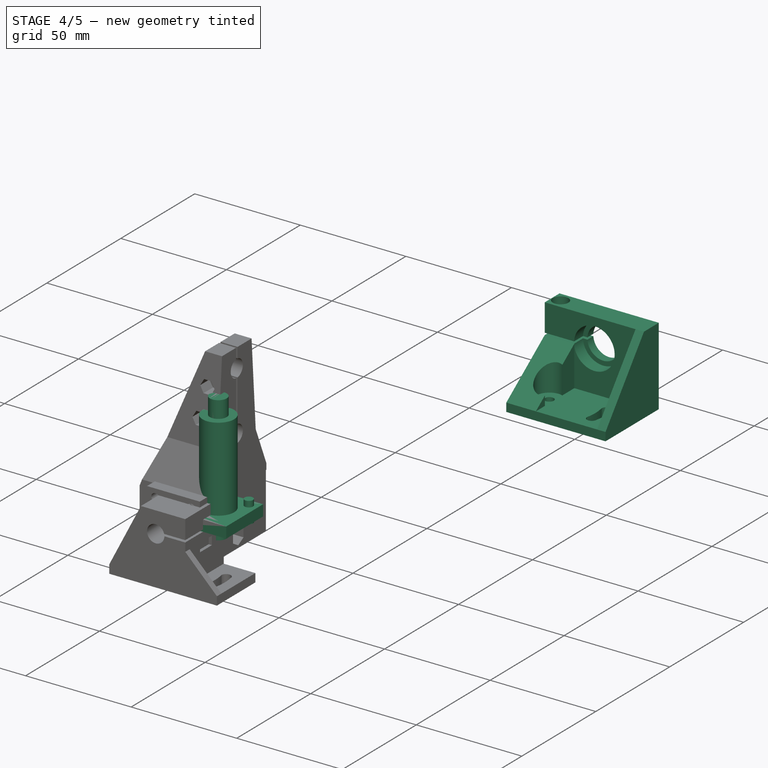
[diagram: stage 4 of 5 — iso view after this stage's code; geometry added in this stage tinted green]
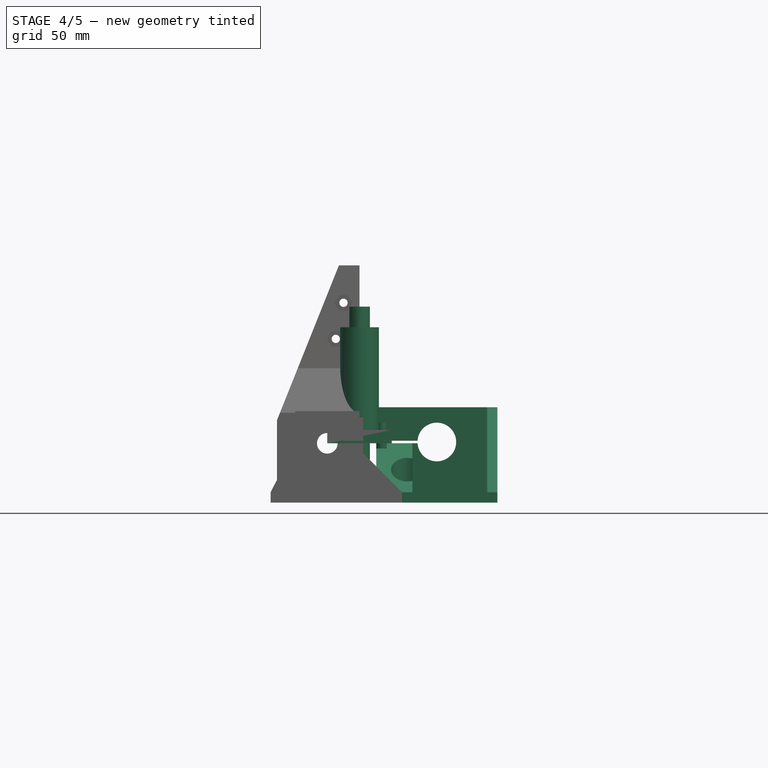
[diagram: stage 4 of 5 — front view after this stage's code; geometry added in this stage tinted green]
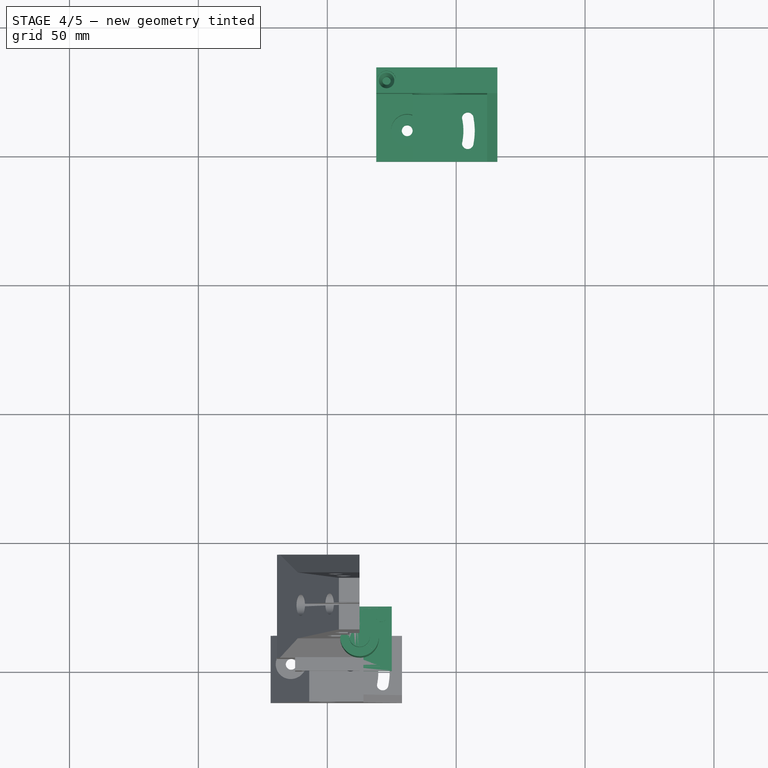
[diagram: stage 4 of 5 — top view after this stage's code; geometry added in this stage tinted green]
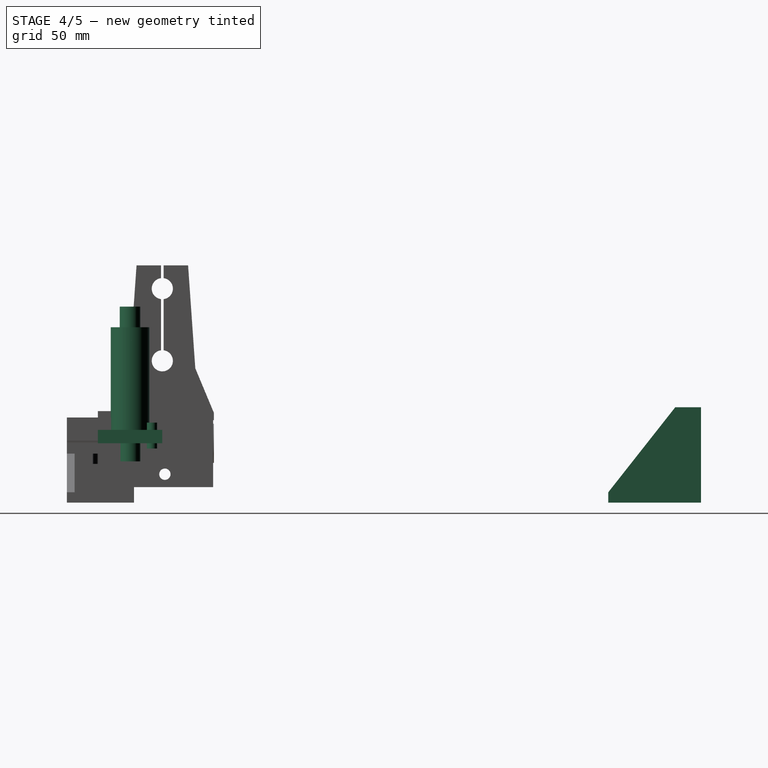
[diagram: stage 4 of 5 — right view after this stage's code; geometry added in this stage tinted green]
FEATURE [Part::Box] Box005  label="Куб005"
  AttacherType = Attacher::AttachEngine3D
  Height = 5.2
  Length = 25
  Width = 25
FEATURE [Part::Cylinder] Cylinder023  label="Цилиндр021"
  Angle = 360
  AttacherType = Attacher::AttachEngine3D
  Height = 60
  Placement = pos=(12.5,12.5,-7) rot=(0,0,1;0rad)
  Radius = 4
FEATURE [Part::Cylinder] Cylinder028  label="Цилиндр026"
  Angle = 360
  AttacherType = Attacher::AttachEngine3D
  Height = 40
  Placement = pos=(12.5,12.5,5) rot=(0,0,1;0rad)
  Radius = 7.5
FEATURE [Part::MultiFuse] Fusion006
  Shapes = -> [Box005,Cylinder028]
FEATURE [Part::Box] Box006  label="Куб006"
  AttacherType = Attacher::AttachEngine3D
  Height = 5.2
  Length = 25
  Width = 25
FEATURE [Part::Cylinder] Cylinder029  label="Цилиндр027"
  Angle = 360
  AttacherType = Attacher::AttachEngine3D
  Height = 60
  Placement = pos=(12.5,12.5,-7) rot=(0,0,1;0rad)
  Radius = 4
FEATURE [Part::Cylinder] Cylinder030  label="Цилиндр028"
  Angle = 360
  AttacherType = Attacher::AttachEngine3D
  Height = 10
  Placement = pos=(4,4,-2) rot=(0,0,1;0rad)
  Radius = 2
FEATURE [Part::Cylinder] Cylinder031  label="Цилиндр029"
  Angle = 360
  AttacherType = Attacher::AttachEngine3D
  Height = 10
  Placement = pos=(4,21,-2) rot=(0,0,1;0rad)
  Radius = 2
FEATURE [Part::Cylinder] Cylinder032  label="Цилиндр030"
  Angle = 360
  AttacherType = Attacher::AttachEngine3D
  Height = 10
  Placement = pos=(21,21,-2) rot=(0,0,1;0rad)
  Radius = 2
FEATURE [Part::Cylinder] Cylinder033  label="Цилиндр031"
  Angle = 360
  AttacherType = Attacher::AttachEngine3D
  Height = 10
  Placement = pos=(21,4,-2) rot=(0,0,1;0rad)
  Radius = 2
FEATURE [Part::Cylinder] Cylinder034  label="Цилиндр032"
  Angle = 360
  AttacherType = Attacher::AttachEngine3D
  Height = 40
  Placement = pos=(12.5,12.5,5) rot=(0,0,1;0rad)
  Radius = 7.5
FEATURE [Part::MultiFuse] Fusion007
  Shapes = -> [Box006,Cylinder034]
FEATURE [Part::Cut] Cut033
  Base = -> Fusion007
  Tool = -> Cylinder029
FEATURE [Part::Cut] Cut032
  Base = -> Cut033
  Tool = -> Cylinder030
FEATURE [Part::Cut] Cut031
  Base = -> Cut032
  Tool = -> Cylinder031
FEATURE [Part::Cut] Cut030
  Base = -> Cut031
  Tool = -> Cylinder033
FEATURE [Part::Cone] Cone002  label="Конус002"
  Angle = 360
  AttacherType = Attacher::AttachEngine3D
  Height = 3.5
  Placement = pos=(0,0,15) rot=(0,0,1;0rad)
  Radius1 = 1.6
  Radius2 = 3
FEATURE [Part::Cylinder] Cylinder039  label="Цилиндр036"
  Angle = 360
  AttacherType = Attacher::AttachEngine3D
  Height = 15
  Radius = 1.6
FEATURE [Part::MultiFuse] Fusion016  label="Винт М3 потай002"
  Placement = pos=(4,31,13.5) rot=(0,0,1;0rad)
  Shapes = -> [Cone002,Cylinder039]
FEATURE [Part::Box] Box012  label="Куб012"
  AttacherType = Attacher::AttachEngine3D
  Height = 1
  Length = 26
  Placement = pos=(-4,13,23) rot=(0,0,1;0rad)
  Width = 42
FEATURE [Part::Box] Box013  label="Куб013"
  AttacherType = Attacher::AttachEngine3D
  Height = 37
  Length = 47
  Placement = pos=(0,26,0) rot=(0,0,1;0rad)
  Width = 10
FEATURE [Part::Cylinder] Cylinder042  label="Цилиндр039"
  Angle = 360
  AttacherType = Attacher::AttachEngine3D
  Height = 6
  Placement = pos=(23.5,26,23.5) rot=(-1,0,0;1.5708rad)
  Radius = 9.6
FEATURE [Part::Cylinder] Cylinder043  label="Цилиндр040"
  Angle = 360
  AttacherType = Attacher::AttachEngine3D
  Height = 10
  Placement = pos=(4,31,32) rot=(0,0,1;0rad)
  Radius = 3.7
FEATURE [Part::Cylinder] Cylinder045  label="Цилиндр042"
  Angle = 360
  AttacherType = Attacher::AttachEngine3D
  Height = 6
  Placement = pos=(23.5,30,23.5) rot=(-1,0,0;1.5708rad)
  Radius = 7.5
FEATURE [Part::Box] Box021  label="Куб021"
  AttacherType = Attacher::AttachEngine3D
  Height = 4
  Length = 47
  Width = 26
FEATURE [Part::Cylinder] Cylinder051  label="Цилиндр047"
  Angle = 360
  AttacherType = Attacher::AttachEngine3D
  Height = 10
  Radius = 2.1
FEATURE [Part::Cylinder] Cylinder052  label="Цилиндр048"
  Angle = 360
  AttacherType = Attacher::AttachEngine3D
  Height = 17
  Placement = pos=(0,0,10) rot=(0,0,1;0rad)
  Radius = 6.25
FEATURE [Part::Cut] Cut047
  Base = -> Box013
  Tool = -> Box012
FEATURE [Part::Cut] Cut048
  Base = -> Cut047
  Tool = -> Cylinder042
FEATURE [Part::Cut] Cut049
  Base = -> Cut048
  Tool = -> Cylinder045
FEATURE [Part::Cut] Cut050
  Base = -> Cut049
  Tool = -> Cylinder043
FEATURE [Part::Cut] Cut051
  Base = -> Cut050
  Tool = -> Fusion016
FEATURE [Part::MultiFuse] Fusion022  label="Саморез004"
  Placement = pos=(12,12,-6) rot=(0,0,1;0rad)
  Shapes = -> [Cylinder051,Cylinder052]
FEATURE [Sketcher::SketchObject] Sketch010
  sketch-geometry (4):
    g0: ArcOfCircle CenterX=9 CenterY=15 CenterZ=0 NormalX=0 NormalY=0 NormalZ=1 AngleXU=0 Radius=27.2 StartAngle=6.09831 EndAngle=6.46806
    g1: ArcOfCircle CenterX=9 CenterY=15 CenterZ=0 NormalX=0 NormalY=0 NormalZ=1 AngleXU=0 Radius=22.8 StartAngle=6.06209 EndAngle=6.50428
    g2: ArcOfCircle CenterX=33.4907 CenterY=10.1383 CenterZ=0 NormalX=0 NormalY=0 NormalZ=1 AngleXU=0 Radius=2.25 StartAngle=3.20309 EndAngle=6.22168
    g3: ArcOfCircle CenterX=33.4907 CenterY=19.8617 CenterZ=0 NormalX=0 NormalY=0 NormalZ=1 AngleXU=0 Radius=2.25 StartAngle=0.0615005 EndAngle=3.08009
  constraints (15):
    c: DistanceX(g0) = 9
    c: DistanceY(g0) = 15
    c: Coincident(g1,g0)
    c: Radius(g1) = 22.8
    c: Radius(g0) = 27.2
    c: DistanceY(g-1,g1) = 10
    c: DistanceY(g-1,g0) = 10
    c: DistanceY(g1,g1) = 10
    c: DistanceY(g0,g0) = 10
    c: Coincident(g2,g1)
    c: Coincident(g2,g0)
    c: Radius(g2) = 2.25
    c: Coincident(g3,g1)
    c: Coincident(g0,g3)
    c: Radius(g3) = 2.25
FEATURE [Part::Extrusion] Extrude014
  Base = -> Sketch010
  Dir = (0,0,-1)
  DirMode = 0
  FaceMakerClass = Part::FaceMakerBullseye
  LengthFwd = 10
  LengthRev = 0
  Placement = pos=(2,-3,8) rot=(0,0,1;0rad)
  Solid = true
  Symmetric = false
FEATURE [Part::Cut] Cut052  label="Корпус подшипника 626"
  Base = -> Cut051
  Tool = -> Fusion015
FEATURE [Sketcher::SketchObject] Sketch014
  Placement = pos=(0,0,0) rot=(0.57735,0.57735,0.57735;2.0944rad)
  sketch-geometry (3):
    g0: LineSegment StartX=3.6e-15 StartY=4 StartZ=0 EndX=26 EndY=4 EndZ=0
    g1: LineSegment StartX=26 StartY=4 StartZ=0 EndX=26 EndY=37 EndZ=0
    g2: LineSegment StartX=26 StartY=37 StartZ=0 EndX=3.6e-15 EndY=4 EndZ=0
  constraints (9):
    c: Horizontal(g0)
    c: DistanceX(g0) = 0
    c: DistanceY(g0) = 4
    c: DistanceX(g0,g0) = 26
    c: Coincident(g1,g0)
    c: Vertical(g1)
    c: DistanceY(g1,g1) = 33
    c: Coincident(g2,g1)
    c: Coincident(g2,g0)
FEATURE [Part::Extrusion] Extrude015
  Base = -> Sketch014
  Dir = (1,0,0)
  DirMode = 0
  FaceMakerClass = Part::FaceMakerBullseye
  LengthFwd = 4
  LengthRev = 0
  Placement = pos=(43,0,0) rot=(0,0,1;0rad)
  Solid = true
  Symmetric = false
FEATURE [Sketcher::SketchObject] Sketch015
  Placement = pos=(0,0,0) rot=(0.57735,0.57735,0.57735;2.0944rad)
  sketch-geometry (3):
    g0: LineSegment StartX=3.6e-15 StartY=4 StartZ=0 EndX=26 EndY=4 EndZ=0
    g1: LineSegment StartX=26 StartY=4 StartZ=0 EndX=26 EndY=23 EndZ=0
    g2: LineSegment StartX=26 StartY=23 StartZ=0 EndX=3.6e-15 EndY=4 EndZ=0
  constraints (9):
    c: Horizontal(g0)
    c: DistanceX(g0) = 0
    c: DistanceY(g0) = 4
    c: DistanceX(g0,g0) = 26
    c: Coincident(g1,g0)
    c: Vertical(g1)
    c: DistanceY(g1,g1) = 19
    c: Coincident(g2,g1)
    c: Coincident(g2,g0)
FEATURE [Part::Extrusion] Extrude016
  Base = -> Sketch015
  Dir = (1,0,0)
  DirMode = 0
  FaceMakerClass = Part::FaceMakerBullseye
  LengthFwd = 14
  LengthRev = 0
  Solid = true
  Symmetric = false
FEATURE [Part::MultiFuse] Fusion023
  Shapes = -> [Cut052,Box021]
FEATURE [Part::MultiFuse] Fusion024
  Shapes = -> [Fusion023,Extrude016,Extrude015]
FEATURE [Part::Cut] Cut053
  Base = -> Fusion024
  Tool = -> Extrude014
FEATURE [Part::Cut] Cut054  label="Опора ХВ задняя"
  Base = -> Cut053
  Placement = pos=(19,198,-23) rot=(0,0,1;0rad)
  Tool = -> Fusion022
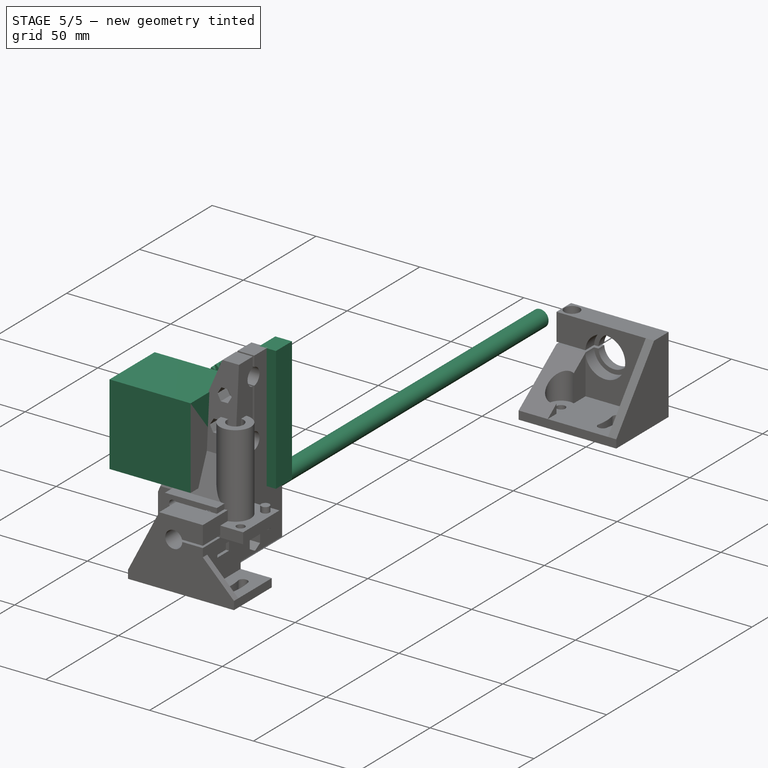
[diagram: stage 5 of 5 — iso view after this stage's code; geometry added in this stage tinted green]
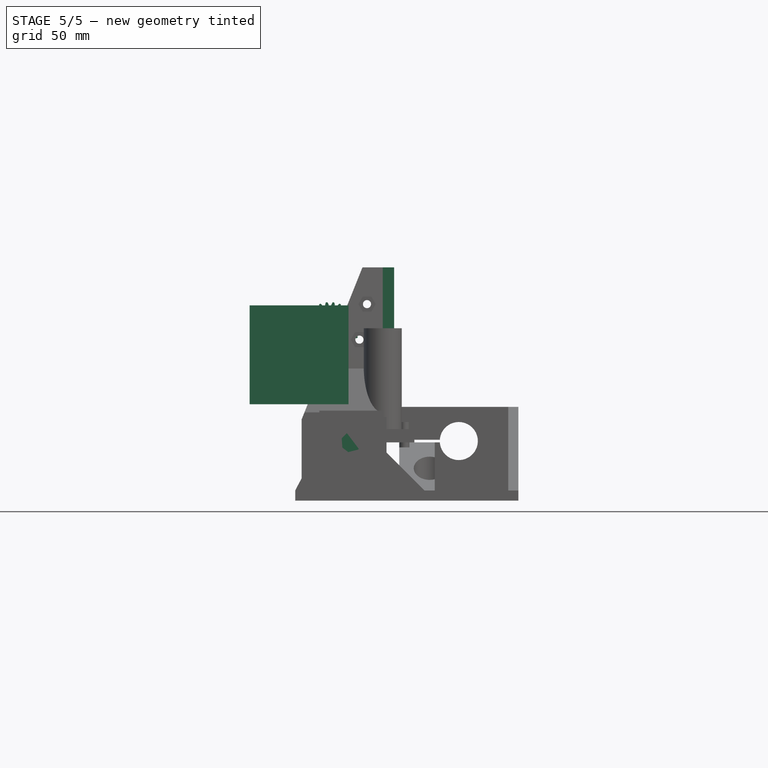
[diagram: stage 5 of 5 — front view after this stage's code; geometry added in this stage tinted green]
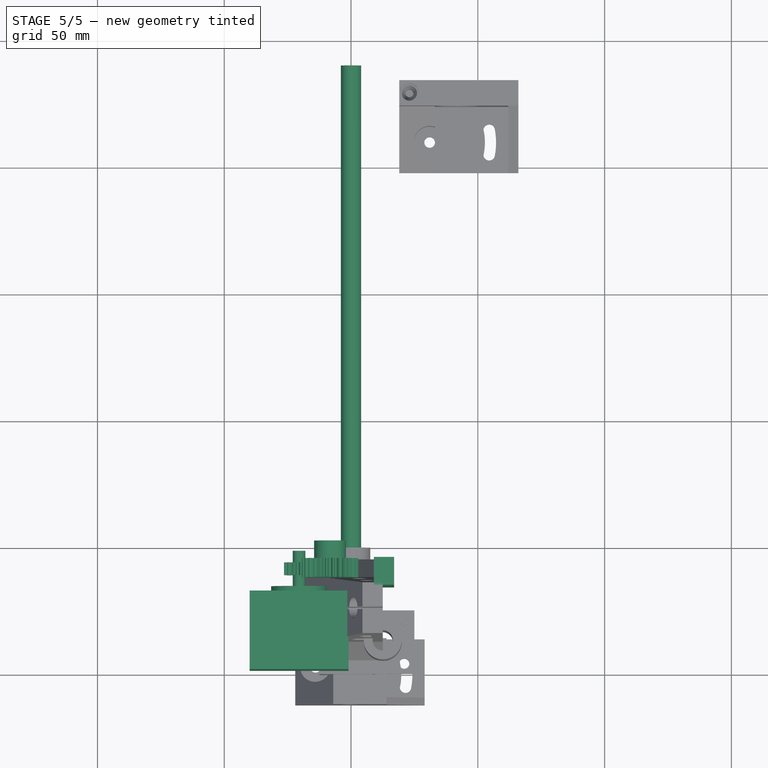
[diagram: stage 5 of 5 — top view after this stage's code; geometry added in this stage tinted green]
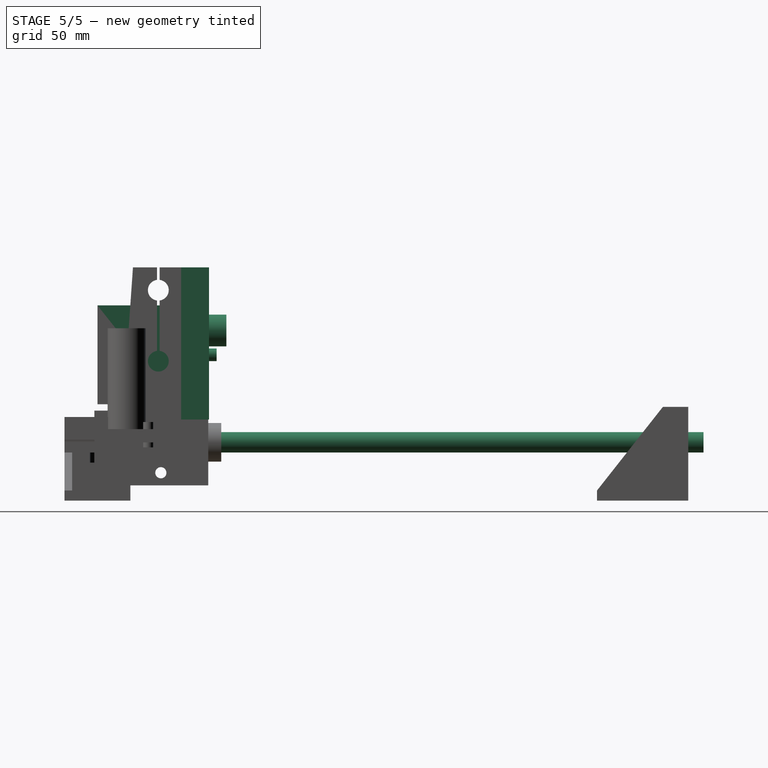
[diagram: stage 5 of 5 — right view after this stage's code; geometry added in this stage tinted green]
FEATURE [Part::Cylinder] Cylinder002  label="Цилиндр002"
  Angle = 360
  AttacherType = Attacher::AttachEngine3D
  Height = 45
  Placement = pos=(12.5,12.5,5) rot=(0,0,1;0rad)
  Radius = 7.6
FEATURE [Part::Cylinder] Cylinder007  label="Цилиндр007"
  Angle = 360
  AttacherType = Attacher::AttachEngine3D
  Height = 10
  Placement = pos=(21,4,-2) rot=(0,0,1;0rad)
  Radius = 2
FEATURE [Part::Cylinder] Cylinder006  label="Цилиндр006"
  Angle = 360
  AttacherType = Attacher::AttachEngine3D
  Height = 10
  Placement = pos=(21,21,-2) rot=(0,0,1;0rad)
  Radius = 2
FEATURE [Part::Cylinder] Cylinder005  label="Цилиндр005"
  Angle = 360
  AttacherType = Attacher::AttachEngine3D
  Height = 10
  Placement = pos=(4,21,-2) rot=(0,0,1;0rad)
  Radius = 2
FEATURE [Part::Cylinder] Cylinder004  label="Цилиндр004"
  Angle = 360
  AttacherType = Attacher::AttachEngine3D
  Height = 10
  Placement = pos=(4,4,-2) rot=(0,0,1;0rad)
  Radius = 2
FEATURE [Part::Cylinder] Cylinder003  label="Цилиндр003"
  Angle = 360
  AttacherType = Attacher::AttachEngine3D
  Height = 60
  Placement = pos=(12.5,12.5,-7) rot=(0,0,1;0rad)
  Radius = 4
FEATURE [Part::Box] Box  label="Куб"
  AttacherType = Attacher::AttachEngine3D
  Height = 5.2
  Length = 25
  Width = 25
FEATURE [Part::MultiFuse] Fusion
  Shapes = -> [Box,Cylinder002]
FEATURE [Part::Cut] Cut
  Base = -> Fusion
  Tool = -> Cylinder003
FEATURE [Part::Cut] Cut001
  Base = -> Cut
  Tool = -> Cylinder004
FEATURE [Part::Cut] Cut002
  Base = -> Cut001
  Tool = -> Cylinder005
FEATURE [Part::Cut] Cut003
  Base = -> Cut002
  Tool = -> Cylinder007
FEATURE [Part::Cut] Cut004  label="Линейный подшипник"
  Base = -> Cut003
  Placement = pos=(-12.5,-0.2,12.5) rot=(-1,0,0;1.5708rad)
  Tool = -> Cylinder006
FEATURE [Part::Cylinder] Cylinder008  label="Направляющая001"
  Angle = 360
  AttacherType = Attacher::AttachEngine3D
  Height = 240
  Placement = pos=(0,0,0) rot=(-1,0,0;1.5708rad)
  Radius = 4
FEATURE [Part::Cylinder] Cylinder014  label="Цилиндр012"
  Angle = 360
  AttacherType = Attacher::AttachEngine3D
  Height = 14
  Placement = pos=(19.5,33,19.5) rot=(-1,0,0;1.5708rad)
  Radius = 2.5
FEATURE [Part::Cylinder] Cylinder013  label="Цилиндр011"
  Angle = 360
  AttacherType = Attacher::AttachEngine3D
  Height = 2
  Placement = pos=(19.5,33,19.5) rot=(1,0,0;1.5708rad)
  Radius = 11
FEATURE [Part::Cylinder] Cylinder012  label="Цилиндр010"
  Angle = 360
  AttacherType = Attacher::AttachEngine3D
  Height = 10
  Placement = pos=(4,23,4) rot=(-1,0,0;1.5708rad)
  Radius = 1.5
FEATURE [Part::Cylinder] Cylinder011  label="Цилиндр009"
  Angle = 360
  AttacherType = Attacher::AttachEngine3D
  Height = 10
  Placement = pos=(35,23,4) rot=(-1,0,0;1.5708rad)
  Radius = 1.5
FEATURE [Part::Cylinder] Cylinder015  label="Цилиндр008"
  Angle = 360
  AttacherType = Attacher::AttachEngine3D
  Height = 10
  Placement = pos=(35,23,35) rot=(-1,0,0;1.5708rad)
  Radius = 1.5
FEATURE [Part::Box] Box002  label="Куб002"
  AttacherType = Attacher::AttachEngine3D
  Height = 39
  Length = 39
  Width = 31
FEATURE [Part::Cylinder] Cylinder016  label="Цилиндр"
  Angle = 360
  AttacherType = Attacher::AttachEngine3D
  Height = 10
  Placement = pos=(4,23,35) rot=(-1,0,0;1.5708rad)
  Radius = 1.5
FEATURE [Part::Cut] Cut005
  Base = -> Box002
  Tool = -> Cylinder016
FEATURE [Part::Cut] Cut006
  Base = -> Cut005
  Tool = -> Cylinder012
FEATURE [Part::Cut] Cut007
  Base = -> Cut006
  Tool = -> Cylinder011
FEATURE [Part::Cut] Cut008
  Base = -> Cut007
  Tool = -> Cylinder015
FEATURE [Part::MultiFuse] Fusion001  label="Шаговый двигатель"
  Placement = pos=(-40,1,15) rot=(0,0,1;0rad)
  Shapes = -> [Cut008,Cylinder013,Cylinder014]
FEATURE [Part::Cylinder] Cylinder  label="Цилиндр013"
  Angle = 360
  AttacherType = Attacher::AttachEngine3D
  Height = 10
  Placement = pos=(21.5,5.5,23.5) rot=(-1,0,0;1.5708rad)
  Radius = 2.6
FEATURE [Part::FeaturePython] InvoluteGear  # WARN: FeaturePython — macro-defined, semantics opaque (R4)
  Placement = pos=(21.5,12.4,23.5) rot=(1,0,0;1.5708rad)
  backlash = 0
  beta = 0
  clearance = 0.25
  double_helix = false
  dw = 10.4
  head = 0
  height = 5
  module = 0.8
  numpoints = 6
  pressure_angle = 20
  properties_from_tool = true
  reversed_backlash = false
  shift = 0
  simple = false
  teeth = 13
  transverse_pitch = 2.51327
  undercut = false
FEATURE [Part::Cut] Cut023
  Base = -> InvoluteGear
  Placement = pos=(-42,31,11) rot=(0,0,1;0rad)
  Tool = -> Cylinder
FEATURE [Part::Cylinder] Cylinder022  label="Цилиндр020"
  Angle = 360
  AttacherType = Attacher::AttachEngine3D
  Height = 7
  Placement = pos=(5.9,11.8552,23.5) rot=(-1,0,0;1.5708rad)
  Radius = 6.25
FEATURE [Part::FeaturePython] InvoluteGear001  # WARN: FeaturePython — macro-defined, semantics opaque (R4)
  Placement = pos=(5.9,11.9,23.5) rot=(1,0,0;1.5708rad)
  backlash = 0
  beta = 0
  clearance = 0.25
  double_helix = false
  dw = 20.8
  head = 0
  height = 7.5
  module = 0.8
  numpoints = 6
  pressure_angle = 20
  properties_from_tool = true
  reversed_backlash = false
  shift = 0
  simple = false
  teeth = 26
  transverse_pitch = 2.51327
  undercut = false
FEATURE [Part::MultiFuse] Fusion005
  Placement = pos=(-14.2,33,20.6) rot=(0,0,1;0rad)
  Shapes = -> [Cylinder022,InvoluteGear001]
FEATURE [Part::Box] Box004  label="Куб004"
  AttacherType = Attacher::AttachEngine3D
  Height = 60
  Length = 8
  Placement = pos=(9,34,9) rot=(0,0,1;0rad)
  Width = 11
FEATURE [Part::Cylinder] Cylinder024  label="Цилиндр022"
  Angle = 360
  AttacherType = Attacher::AttachEngine3D
  Height = 10
  Placement = pos=(4,4,-2) rot=(0,0,1;0rad)
  Radius = 2
FEATURE [Part::Cylinder] Cylinder025  label="Цилиндр023"
  Angle = 360
  AttacherType = Attacher::AttachEngine3D
  Height = 10
  Placement = pos=(4,21,-2) rot=(0,0,1;0rad)
  Radius = 2
FEATURE [Part::Cylinder] Cylinder026  label="Цилиндр024"
  Angle = 360
  AttacherType = Attacher::AttachEngine3D
  Height = 10
  Placement = pos=(21,21,-2) rot=(0,0,1;0rad)
  Radius = 2
FEATURE [Part::Cylinder] Cylinder027  label="Цилиндр025"
  Angle = 360
  AttacherType = Attacher::AttachEngine3D
  Height = 10
  Placement = pos=(21,4,-2) rot=(0,0,1;0rad)
  Radius = 2
FEATURE [Part::Cut] Cut027
  Base = -> Fusion006
  Tool = -> Cylinder023
FEATURE [Part::Cut] Cut028
  Base = -> Cut027
  Tool = -> Cylinder024
FEATURE [Part::Cut] Cut025
  Base = -> Cut028
  Tool = -> Cylinder025
FEATURE [Part::Cut] Cut026
  Base = -> Cut025
  Tool = -> Cylinder027
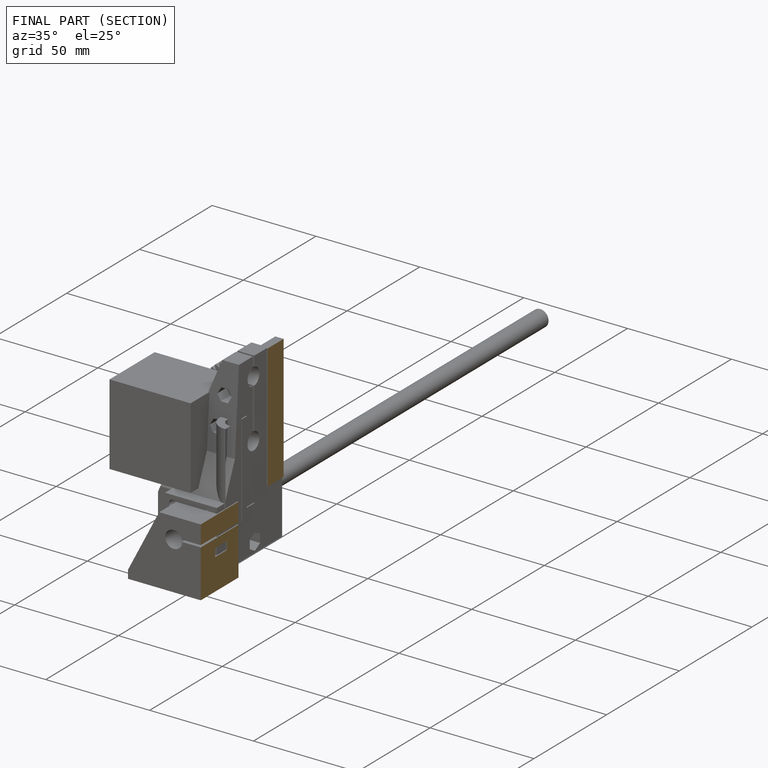
[diagram: finished part — half-section view (interior)]
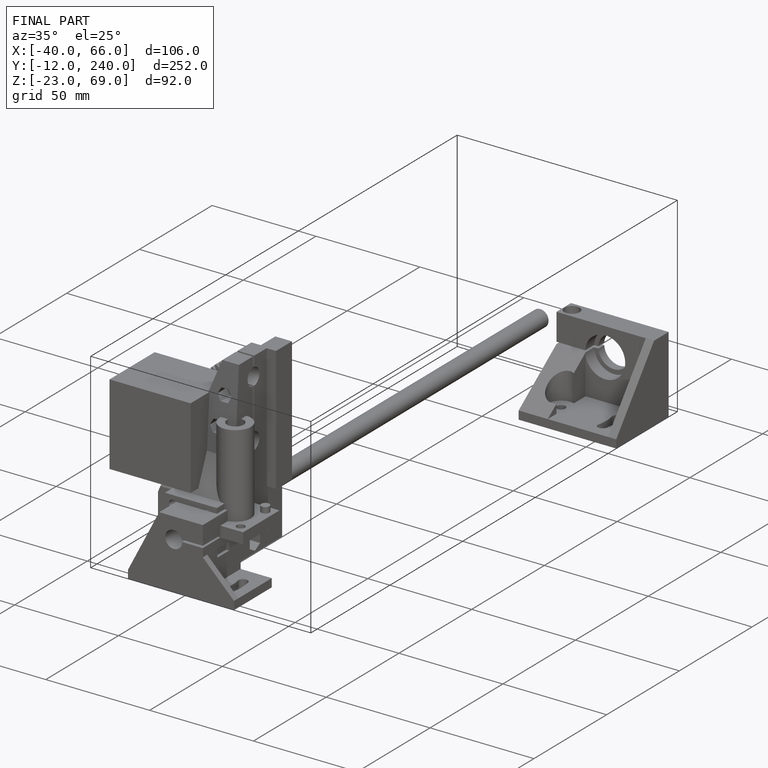
[diagram: finished part — iso view with bounding-box wireframe]
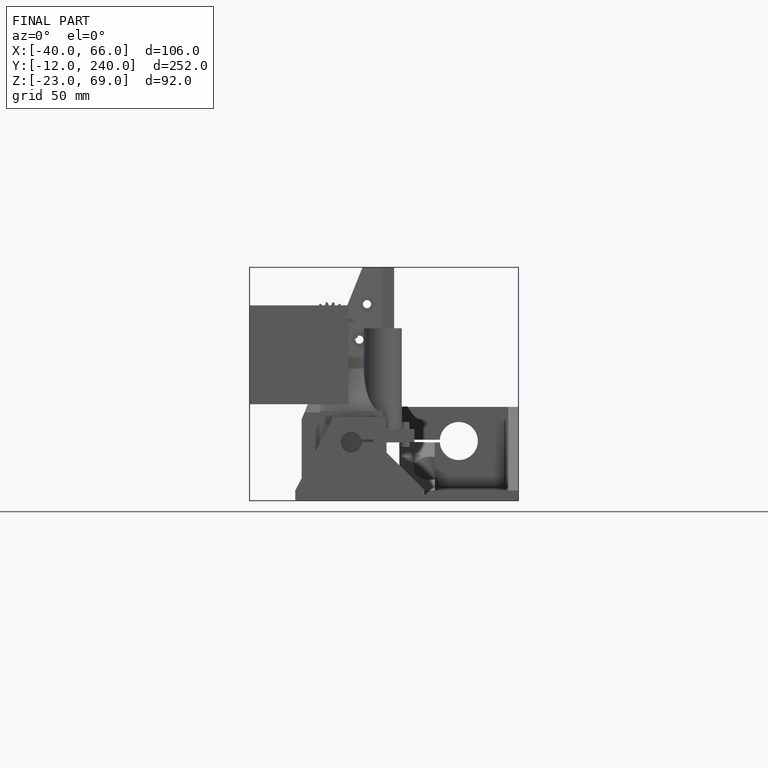
[diagram: finished part — front view with bounding-box wireframe]
